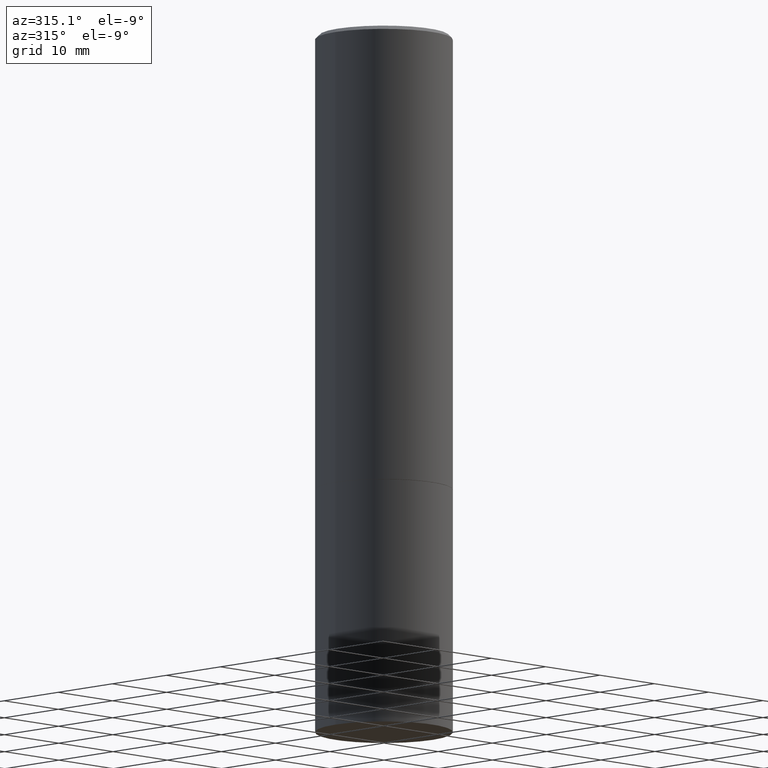
[diagram: clean part render]
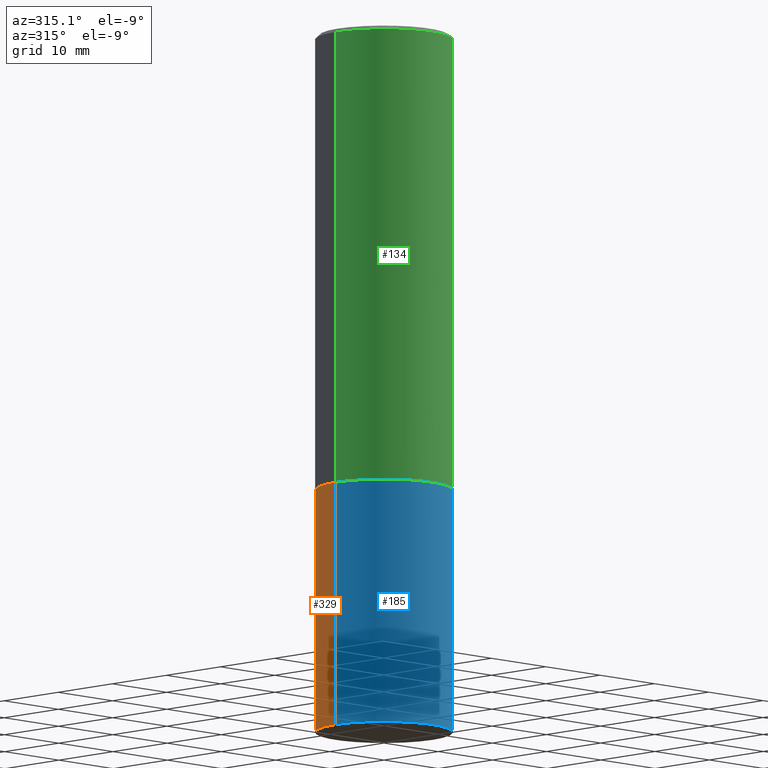
[diagram: same view with three faces highlighted in distinct colors, each labeled with its STEP entity id]
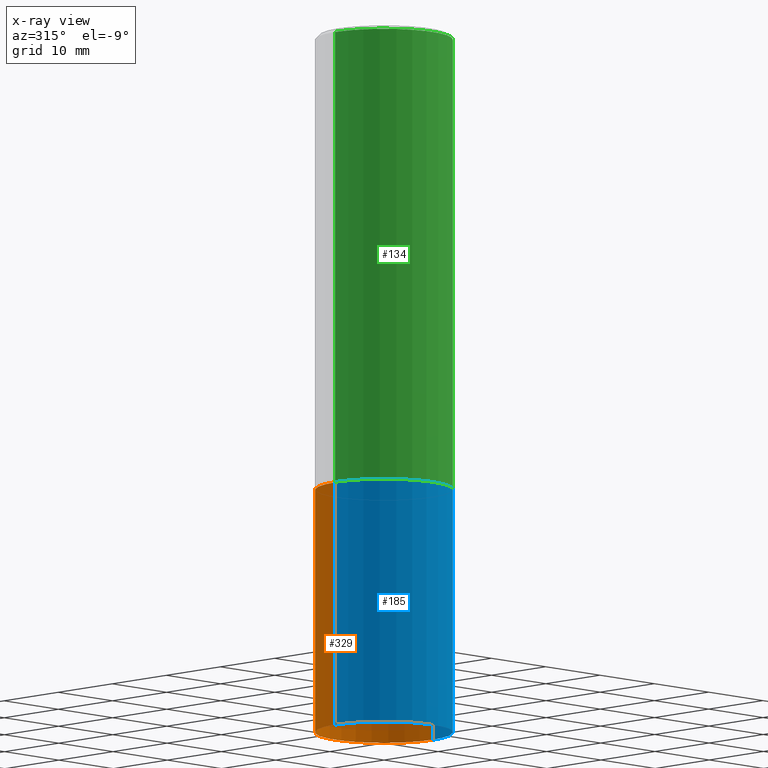
[diagram: x-ray of the same camera — body ghosted, the three highlighted faces saturated]
A machine part, auxiliary view with three faces highlighted in distinct colors.
The next image is the same camera in x-ray (body ghosted, the three faces saturated) — at least one of them is partly hidden behind the body in this view.
Their STEP definitions:

[orange] entity #329 — the highlighted cylindrical surface (partial cylindrical patch) has radius 9.0005 mm, axis along (-0, 0, 1).
#4 = CIRCLE ( 'NONE', #339, 0.3543499999999999983 ) ;
#10 = DIRECTION ( 'NONE',  ( 1.000000000000000000, -6.982962677686268288E-15, 0.000000000000000000 ) ) ;
#16 = FACE_OUTER_BOUND ( 'NONE', #224, .T. ) ;
#33 = ORIENTED_EDGE ( 'NONE', *, *, #366, .T. ) ;
#49 = DIRECTION ( 'NONE',  ( -2.445468806185136597E-29, 3.491481338843145583E-15, 1.000000000000000000 ) ) ;
#51 = AXIS2_PLACEMENT_3D ( 'NONE', #150, #349, #10 ) ;
#54 = VERTEX_POINT ( 'NONE', #351 ) ;
#62 = VERTEX_POINT ( 'NONE', #129 ) ;
#67 = EDGE_CURVE ( 'NONE', #54, #62, #263, .T. ) ;
#85 = ORIENTED_EDGE ( 'NONE', *, *, #338, .F. ) ;
#87 = CARTESIAN_POINT ( 'NONE',  ( 0.3543499999999999983, -1.512055823412800029E-14, -3.621999999999999886 ) ) ;
#104 = VECTOR ( 'NONE', #142, 39.37007874015748143 ) ;
#126 = CYLINDRICAL_SURFACE ( 'NONE', #289, 0.3543499999999999983 ) ;
#128 = CIRCLE ( 'NONE', #51, 0.3543499999999999983 ) ;
#129 = CARTESIAN_POINT ( 'NONE',  ( -0.3543499999999999983, -7.929053129786659628E-15, -2.362199999999999633 ) ) ;
#130 = VERTEX_POINT ( 'NONE', #87 ) ;
#142 = DIRECTION ( 'NONE',  ( -2.445468806185136877E-29, 3.491481338843145188E-15, 1.000000000000000000 ) ) ;
#150 = CARTESIAN_POINT ( 'NONE',  ( 5.776686413970529753E-29, -8.247577218615278049E-15, -2.362199999999999633 ) ) ;
#153 = DIRECTION ( 'NONE',  ( 1.000000000000000000, -6.982962677686266711E-15, 4.876176775795935793E-29 ) ) ;
#160 = CARTESIAN_POINT ( 'NONE',  ( 0.000000000000000000, 0.000000000000000000, 0.000000000000000000 ) ) ;
#189 = CARTESIAN_POINT ( 'NONE',  ( 8.857488016002564476E-29, -1.264614540928987199E-14, -3.621999999999999886 ) ) ;
#201 = CARTESIAN_POINT ( 'NONE',  ( 0.3543499999999999983, -2.474412824838128694E-15, 1.727873240503289749E-29 ) ) ;
#215 = DIRECTION ( 'NONE',  ( -2.445468806185136877E-29, 3.491481338843145188E-15, 1.000000000000000000 ) ) ;
#221 = DIRECTION ( 'NONE',  ( 1.000000000000000000, -6.982962677686265922E-15, 0.000000000000000000 ) ) ;
#222 = ORIENTED_EDGE ( 'NONE', *, *, #67, .T. ) ;
#224 = EDGE_LOOP ( 'NONE', ( #33, #222, #247, #85 ) ) ;
#247 = ORIENTED_EDGE ( 'NONE', *, *, #337, .F. ) ;
#263 = LINE ( 'NONE', #358, #321 ) ;
#287 = LINE ( 'NONE', #201, #104 ) ;
#289 = AXIS2_PLACEMENT_3D ( 'NONE', #160, #356, #153 ) ;
#321 = VECTOR ( 'NONE', #215, 39.37007874015748143 ) ;
#329 = ADVANCED_FACE ( 'NONE', ( #16 ), #126, .T. ) ;
#332 = CARTESIAN_POINT ( 'NONE',  ( 0.3543499999999999983, -1.072199004345340635E-14, -2.362199999999999633 ) ) ;
#337 = EDGE_CURVE ( 'NONE', #360, #62, #128, .T. ) ;
#338 = EDGE_CURVE ( 'NONE', #130, #360, #287, .T. ) ;
#339 = AXIS2_PLACEMENT_3D ( 'NONE', #189, #49, #221 ) ;
#349 = DIRECTION ( 'NONE',  ( -2.445468806185136597E-29, 3.491481338843145583E-15, 1.000000000000000000 ) ) ;
#351 = CARTESIAN_POINT ( 'NONE',  ( -0.3543499999999999983, -7.929053129786659628E-15, -3.621999999999999886 ) ) ;
#356 = DIRECTION ( 'NONE',  ( -2.445468806185136597E-29, 3.491481338843145583E-15, 1.000000000000000000 ) ) ;
#358 = CARTESIAN_POINT ( 'NONE',  ( -0.3543499999999999983, 2.517808184165914997E-15, -1.743024649231826066E-29 ) ) ;
#360 = VERTEX_POINT ( 'NONE', #332 ) ;
#366 = EDGE_CURVE ( 'NONE', #130, #54, #4, .T. ) ;

[blue] entity #185 — the highlighted cylindrical surface (partial cylindrical patch) has radius 9.0005 mm, axis along (-0, 0, 1).
#1 = ORIENTED_EDGE ( 'NONE', *, *, #338, .T. ) ;
#13 = EDGE_CURVE ( 'NONE', #62, #360, #330, .T. ) ;
#15 = DIRECTION ( 'NONE',  ( -2.445468806185136597E-29, 3.491481338843145583E-15, 1.000000000000000000 ) ) ;
#42 = EDGE_LOOP ( 'NONE', ( #167, #141, #1, #280 ) ) ;
#43 = DIRECTION ( 'NONE',  ( 1.000000000000000000, -6.982962677686268288E-15, 0.000000000000000000 ) ) ;
#54 = VERTEX_POINT ( 'NONE', #351 ) ;
#55 = AXIS2_PLACEMENT_3D ( 'NONE', #178, #209, #235 ) ;
#62 = VERTEX_POINT ( 'NONE', #129 ) ;
#67 = EDGE_CURVE ( 'NONE', #54, #62, #263, .T. ) ;
#87 = CARTESIAN_POINT ( 'NONE',  ( 0.3543499999999999983, -1.512055823412800029E-14, -3.621999999999999886 ) ) ;
#104 = VECTOR ( 'NONE', #142, 39.37007874015748143 ) ;
#106 = CIRCLE ( 'NONE', #195, 0.3543499999999999983 ) ;
#129 = CARTESIAN_POINT ( 'NONE',  ( -0.3543499999999999983, -7.929053129786659628E-15, -2.362199999999999633 ) ) ;
#130 = VERTEX_POINT ( 'NONE', #87 ) ;
#141 = ORIENTED_EDGE ( 'NONE', *, *, #192, .T. ) ;
#142 = DIRECTION ( 'NONE',  ( -2.445468806185136877E-29, 3.491481338843145188E-15, 1.000000000000000000 ) ) ;
#152 = CARTESIAN_POINT ( 'NONE',  ( 8.857488016002564476E-29, -1.264614540928987199E-14, -3.621999999999999886 ) ) ;
#167 = ORIENTED_EDGE ( 'NONE', *, *, #67, .F. ) ;
#178 = CARTESIAN_POINT ( 'NONE',  ( 0.000000000000000000, 0.000000000000000000, 0.000000000000000000 ) ) ;
#181 = CARTESIAN_POINT ( 'NONE',  ( 5.776686413970529753E-29, -8.247577218615278049E-15, -2.362199999999999633 ) ) ;
#185 = ADVANCED_FACE ( 'NONE', ( #206 ), #319, .T. ) ;
#192 = EDGE_CURVE ( 'NONE', #54, #130, #106, .T. ) ;
#195 = AXIS2_PLACEMENT_3D ( 'NONE', #152, #15, #233 ) ;
#201 = CARTESIAN_POINT ( 'NONE',  ( 0.3543499999999999983, -2.474412824838128694E-15, 1.727873240503289749E-29 ) ) ;
#206 = FACE_OUTER_BOUND ( 'NONE', #42, .T. ) ;
#209 = DIRECTION ( 'NONE',  ( -2.445468806185136597E-29, 3.491481338843145583E-15, 1.000000000000000000 ) ) ;
#215 = DIRECTION ( 'NONE',  ( -2.445468806185136877E-29, 3.491481338843145188E-15, 1.000000000000000000 ) ) ;
#233 = DIRECTION ( 'NONE',  ( 1.000000000000000000, -6.982962677686265922E-15, 0.000000000000000000 ) ) ;
#235 = DIRECTION ( 'NONE',  ( 1.000000000000000000, -6.982962677686266711E-15, 4.876176775795935793E-29 ) ) ;
#263 = LINE ( 'NONE', #358, #321 ) ;
#280 = ORIENTED_EDGE ( 'NONE', *, *, #13, .F. ) ;
#287 = LINE ( 'NONE', #201, #104 ) ;
#292 = DIRECTION ( 'NONE',  ( -2.445468806185136597E-29, 3.491481338843145583E-15, 1.000000000000000000 ) ) ;
#313 = AXIS2_PLACEMENT_3D ( 'NONE', #181, #292, #43 ) ;
#319 = CYLINDRICAL_SURFACE ( 'NONE', #55, 0.3543499999999999983 ) ;
#321 = VECTOR ( 'NONE', #215, 39.37007874015748143 ) ;
#330 = CIRCLE ( 'NONE', #313, 0.3543499999999999983 ) ;
#332 = CARTESIAN_POINT ( 'NONE',  ( 0.3543499999999999983, -1.072199004345340635E-14, -2.362199999999999633 ) ) ;
#338 = EDGE_CURVE ( 'NONE', #130, #360, #287, .T. ) ;
#351 = CARTESIAN_POINT ( 'NONE',  ( -0.3543499999999999983, -7.929053129786659628E-15, -3.621999999999999886 ) ) ;
#358 = CARTESIAN_POINT ( 'NONE',  ( -0.3543499999999999983, 2.517808184165914997E-15, -1.743024649231826066E-29 ) ) ;
#360 = VERTEX_POINT ( 'NONE', #332 ) ;

[green] entity #134 — the highlighted cylindrical surface (partial cylindrical patch) has radius 9.0005 mm, axis along (-0, 0, 1).
#7 = CARTESIAN_POINT ( 'NONE',  ( 4.890937612370293302E-31, -6.982962677686318726E-17, -0.02000000000000008021 ) ) ;
#22 = DIRECTION ( 'NONE',  ( 1.000000000000000000, -6.982962677686265922E-15, 0.000000000000000000 ) ) ;
#24 = VECTOR ( 'NONE', #100, 39.37007874015748143 ) ;
#26 = EDGE_CURVE ( 'NONE', #151, #29, #81, .T. ) ;
#29 = VERTEX_POINT ( 'NONE', #45 ) ;
#34 = CIRCLE ( 'NONE', #262, 0.3543499999999997208 ) ;
#45 = CARTESIAN_POINT ( 'NONE',  ( -0.3543499999999997208, 2.404583198061263424E-15, -0.02000000000000008021 ) ) ;
#50 = CARTESIAN_POINT ( 'NONE',  ( 0.3543499999999999983, -1.071849856211456176E-14, -2.361199999999999743 ) ) ;
#74 = CARTESIAN_POINT ( 'NONE',  ( 5.774240945164344150E-29, -8.244085737276433464E-15, -2.361199999999999743 ) ) ;
#81 = LINE ( 'NONE', #266, #154 ) ;
#95 = AXIS2_PLACEMENT_3D ( 'NONE', #74, #182, #22 ) ;
#100 = DIRECTION ( 'NONE',  ( -2.445468806185136877E-29, 3.491481338843145188E-15, 1.000000000000000000 ) ) ;
#117 = ORIENTED_EDGE ( 'NONE', *, *, #158, .T. ) ;
#124 = ORIENTED_EDGE ( 'NONE', *, *, #170, .T. ) ;
#132 = AXIS2_PLACEMENT_3D ( 'NONE', #161, #300, #268 ) ;
#134 = ADVANCED_FACE ( 'NONE', ( #188 ), #212, .T. ) ;
#136 = EDGE_LOOP ( 'NONE', ( #149, #117, #124, #194 ) ) ;
#145 = CARTESIAN_POINT ( 'NONE',  ( 0.3543499999999998873, -2.474412824838127905E-15, 1.727873240503289188E-29 ) ) ;
#149 = ORIENTED_EDGE ( 'NONE', *, *, #26, .F. ) ;
#151 = VERTEX_POINT ( 'NONE', #324 ) ;
#154 = VECTOR ( 'NONE', #163, 39.37007874015748143 ) ;
#158 = EDGE_CURVE ( 'NONE', #151, #327, #228, .T. ) ;
#161 = CARTESIAN_POINT ( 'NONE',  ( 0.000000000000000000, 0.000000000000000000, 0.000000000000000000 ) ) ;
#163 = DIRECTION ( 'NONE',  ( -2.445468806185136877E-29, 3.491481338843145188E-15, 1.000000000000000000 ) ) ;
#170 = EDGE_CURVE ( 'NONE', #327, #312, #204, .T. ) ;
#182 = DIRECTION ( 'NONE',  ( -2.445468806185136597E-29, 3.491481338843145583E-15, 1.000000000000000000 ) ) ;
#188 = FACE_OUTER_BOUND ( 'NONE', #136, .T. ) ;
#194 = ORIENTED_EDGE ( 'NONE', *, *, #315, .F. ) ;
#204 = LINE ( 'NONE', #145, #24 ) ;
#212 = CYLINDRICAL_SURFACE ( 'NONE', #132, 0.3543499999999998873 ) ;
#228 = CIRCLE ( 'NONE', #95, 0.3543499999999999983 ) ;
#262 = AXIS2_PLACEMENT_3D ( 'NONE', #7, #355, #298 ) ;
#266 = CARTESIAN_POINT ( 'NONE',  ( -0.3543499999999998873, 2.517808184165914208E-15, -1.743024649231825225E-29 ) ) ;
#268 = DIRECTION ( 'NONE',  ( 1.000000000000000000, -6.982962677686266711E-15, 4.876176775795935232E-29 ) ) ;
#298 = DIRECTION ( 'NONE',  ( 1.000000000000000000, -6.982962677686266711E-15, 0.000000000000000000 ) ) ;
#300 = DIRECTION ( 'NONE',  ( -2.445468806185136597E-29, 3.491481338843145583E-15, 1.000000000000000000 ) ) ;
#312 = VERTEX_POINT ( 'NONE', #328 ) ;
#315 = EDGE_CURVE ( 'NONE', #29, #312, #34, .T. ) ;
#324 = CARTESIAN_POINT ( 'NONE',  ( -0.3543499999999999983, -1.639149497860731807E-15, -2.361199999999999743 ) ) ;
#327 = VERTEX_POINT ( 'NONE', #50 ) ;
#328 = CARTESIAN_POINT ( 'NONE',  ( 0.3543499999999997208, -2.500847092287203718E-15, -0.02000000000000008021 ) ) ;
#355 = DIRECTION ( 'NONE',  ( -2.445468806185136597E-29, 3.491481338843145583E-15, 1.000000000000000000 ) ) ;